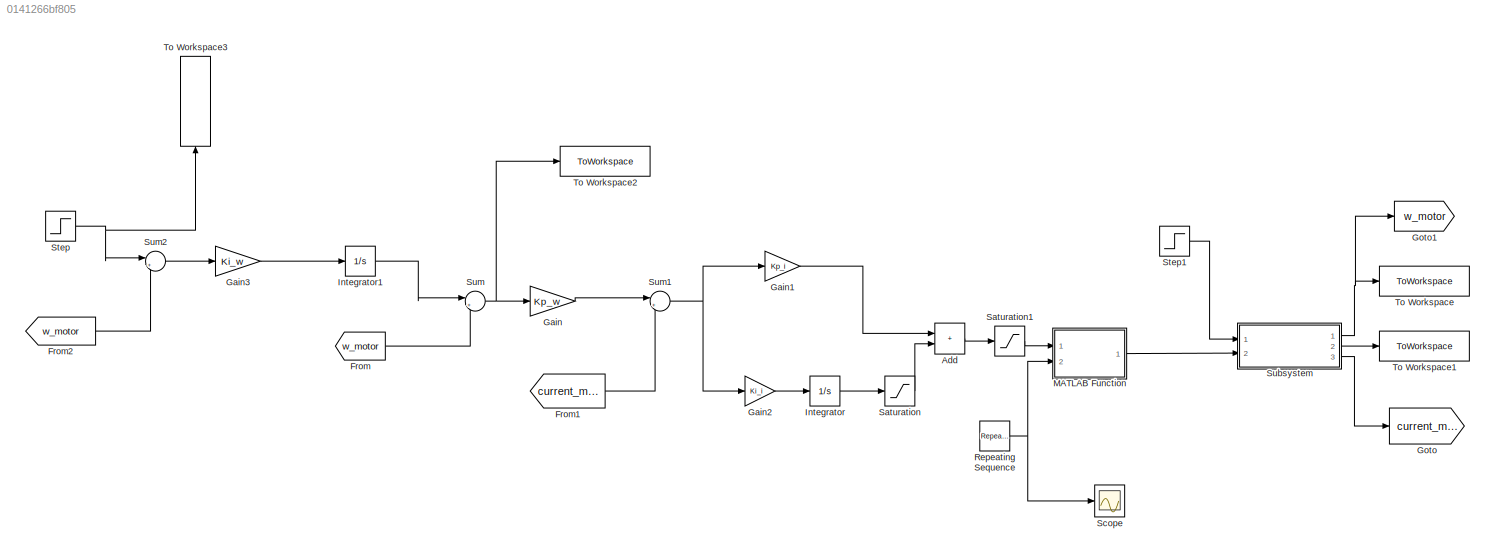
MODEL slx_0141266bf805
KIND model
CONFIG AbsTol = auto
CONFIG EnableMultiTasking = off
CONFIG FixedStep = auto
CONFIG MaxStep = 2e-5
CONFIG MinStep = auto
CONFIG RelTol = 1e-3
CONFIG SampleTimeConstraint = Unconstrained
CONFIG SolverName = ode23t
CONFIG StartTime = 0.0
CONFIG StopTime = 1
BLOCK [Sum] Add
  IconShape = rectangular
  Ports = [2, 1]
BLOCK [From] From
  GotoTag = w_motor
BLOCK [From] From1
  GotoTag = current_motor
BLOCK [From] From2
  GotoTag = w_motor
BLOCK [Gain] Gain
  Gain = Kp_w
BLOCK [Gain] Gain1
  Gain = Kp_i
BLOCK [Gain] Gain2
  Gain = Ki_i
BLOCK [Gain] Gain3
  Gain = Ki_w
BLOCK [Goto] Goto
  GotoTag = current_motor
BLOCK [Goto] Goto1
  GotoTag = w_motor
BLOCK [Integrator] Integrator
  Ports = [1, 1]
BLOCK [Integrator] Integrator1
  Ports = [1, 1]
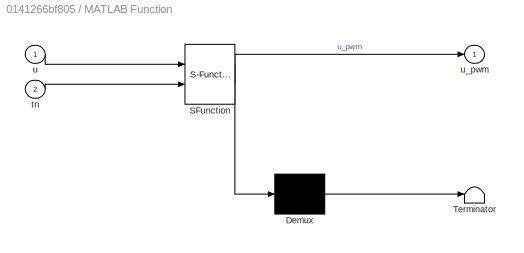
BLOCK [SubSystem] MATLAB Function
  ErrorFcn = Stateflow.Translate.translate
  PermitHierarchicalResolution = ExplicitOnly
  Ports = [2, 1]
  RequestExecContextInheritance = off
  SFBlockType = MATLAB Function
  TreatAsAtomicUnit = on
BLOCK [Demux] MATLAB Function/ Demux 
  Outputs = 1
  Ports = [1, 1]
BLOCK [S-Function] MATLAB Function/ SFunction 
  EnableBusSupport = on
  FunctionName = sf_sfun
  PortCounts = [2 2]
  Ports = [2, 2]
  SFcnIsStateOwnerBlock = off
  SFunctionDeploymentMode = off
  Tag = Stateflow S-Function 2
BLOCK [Terminator] MATLAB Function/ Terminator 
BLOCK [Inport] MATLAB Function/tri
  Port = 2
BLOCK [Inport] MATLAB Function/u
BLOCK [Outport] MATLAB Function/u_pwm
BLOCK [Reference] Repeating Sequence  REF=simulink/Sources/Repeating
Sequence
  Ports = [0, 1]
  SourceBlock = simulink/Sources/Repeating\nSequence
  SourceProductBaseCode = SL
  SourceType = Repeating table
BLOCK [Saturate] Saturation
  LowerLimit = -1
  UpperLimit = 1
BLOCK [Saturate] Saturation1
  LowerLimit = -1
  UpperLimit = 1
BLOCK [Scope] Scope
  Floating = off
  NumInputPorts = 1
  Ports = [1]
  ScopeSpecificationString = Simulink.scopes.TimeScopeBlockCfg('CurrentConfiguration', extmgr.ConfigurationSet(extmgr.Configuration('Core','General UI',true),extmgr.Configuration('Core','Source UI',true),extmgr.Configuration('Sources','WiredSimulink',true),extmgr.Configuration('Visuals','Time Domain',true,'SerializedDisplays',{struct('MinYLimReal','-1.24955','MaxYLimReal','1.24592','YLabelReal','','MinYLimMag','0.00000','MaxY...<+1368ch>
BLOCK [Step] Step
  After = w_z
  SampleTime = 0
  Time = 0.5
BLOCK [Step] Step1
  After = M_nom
  Before = M_nom
  SampleTime = 0
  Time = 0
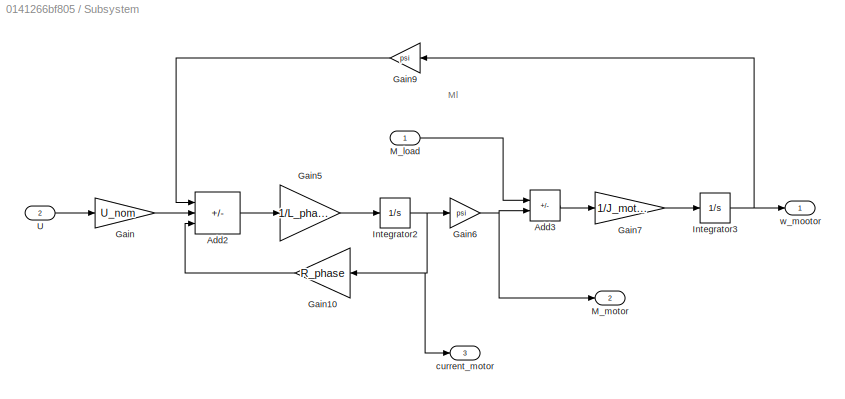
BLOCK [SubSystem] Subsystem
  Ports = [2, 3]
  RequestExecContextInheritance = off
BLOCK [Sum] Subsystem/Add2
  IconShape = rectangular
  Inputs = -+-
  Ports = [3, 1]
BLOCK [Sum] Subsystem/Add3
  IconShape = rectangular
  Inputs = -+
  Ports = [2, 1]
BLOCK [Gain] Subsystem/Gain
  Gain = U_nom
BLOCK [Gain] Subsystem/Gain10
  Gain = R_phase
  NameLocation = top
BLOCK [Gain] Subsystem/Gain5
  Gain = 1/L_phase
BLOCK [Gain] Subsystem/Gain6
  Gain = psi
BLOCK [Gain] Subsystem/Gain7
  Gain = 1/J_motor
BLOCK [Gain] Subsystem/Gain9
  Gain = psi
  NameLocation = top
BLOCK [Integrator] Subsystem/Integrator2
  Ports = [1, 1]
BLOCK [Integrator] Subsystem/Integrator3
  Ports = [1, 1]
BLOCK [Inport] Subsystem/M_load
BLOCK [Outport] Subsystem/M_motor
  Port = 2
BLOCK [Inport] Subsystem/U
  Port = 2
BLOCK [Outport] Subsystem/current_motor
  Port = 3
BLOCK [Outport] Subsystem/w_mootor
BLOCK [Sum] Sum
  Inputs = |+-
  Ports = [2, 1]
BLOCK [Sum] Sum1
  Inputs = |+-
  Ports = [2, 1]
BLOCK [Sum] Sum2
  Inputs = |+-
  Ports = [2, 1]
BLOCK [ToWorkspace] To Workspace
  FixptAsFi = on
  MaxDataPoints = inf
  Ports = [1]
  SampleTime = -1
  SaveFormat = Timeseries
  VariableName = w_motor
BLOCK [ToWorkspace] To Workspace1
  FixptAsFi = on
  MaxDataPoints = inf
  Ports = [1]
  SampleTime = -1
  SaveFormat = Timeseries
  VariableName = M_motor
BLOCK [ToWorkspace] To Workspace2
  FixptAsFi = on
  MaxDataPoints = inf
  Ports = [1]
  SampleTime = -1
  SaveFormat = Timeseries
  VariableName = error_w
BLOCK [ToWorkspace] To Workspace3
  FixptAsFi = on
  MaxDataPoints = inf
  NameLocation = right
  Ports = [1]
  SampleTime = -1
  SaveFormat = Timeseries
  VariableName = w_z
ANNOTATION Subsystem: Ml
LINE Add:1 -> Saturation1:1
LINE From1:1 -> Sum1:2
LINE From2:1 -> Sum2:2
LINE From:1 -> Sum:2
LINE Gain1:1 -> Add:1
LINE Gain2:1 -> Integrator:1
LINE Gain3:1 -> Integrator1:1
LINE Gain:1 -> Sum1:1
LINE Integrator1:1 -> Sum:1
LINE Integrator:1 -> Saturation:1
LINE MATLAB Function:1 -> Subsystem:2
NET Repeating Sequence:1 -> MATLAB Function:2, Scope:1
LINE Saturation1:1 -> MATLAB Function:1
LINE Saturation:1 -> Add:2
LINE Step1:1 -> Subsystem:1
NET Step:1 -> Sum2:1, To Workspace3:1
LINE Subsystem/Add2:1 -> Subsystem/Gain5:1
LINE Subsystem/Add3:1 -> Subsystem/Gain7:1
LINE Subsystem/Gain10:1 -> Subsystem/Add2:3
LINE Subsystem/Gain5:1 -> Subsystem/Integrator2:1
NET Subsystem/Gain6:1 -> Subsystem/Add3:2, Subsystem/M_motor:1
LINE Subsystem/Gain7:1 -> Subsystem/Integrator3:1
LINE Subsystem/Gain9:1 -> Subsystem/Add2:1
LINE Subsystem/Gain:1 -> Subsystem/Add2:2
NET Subsystem/Integrator2:1 -> Subsystem/Gain10:1, Subsystem/Gain6:1, Subsystem/current_motor:1
NET Subsystem/Integrator3:1 -> Subsystem/Gain9:1, Subsystem/w_mootor:1
LINE Subsystem/M_load:1 -> Subsystem/Add3:1
LINE Subsystem/U:1 -> Subsystem/Gain:1
NET Subsystem:1 -> Goto1:1, To Workspace:1
LINE Subsystem:2 -> To Workspace1:1
LINE Subsystem:3 -> Goto:1
NET Sum1:1 -> Gain1:1, Gain2:1
LINE Sum2:1 -> Gain3:1
NET Sum:1 -> Gain:1, To Workspace2:1
note: NET lines group one-source signal fan-out (src -> all destinations, sorted); 1:1 wires keep LINE
CHART MATLAB Function states=1 transitions=1
  STATE_LABEL 'eML_blk_kernel()'
  STATE_LABEL 'SCRIPT:\nfunction u_pwm = fcn(u, tri)\nif u>=tri\n    u_pwm = 1;\nelse\n    u_pwm = -1;\nend\n'
CHART  states=0 transitions=0
